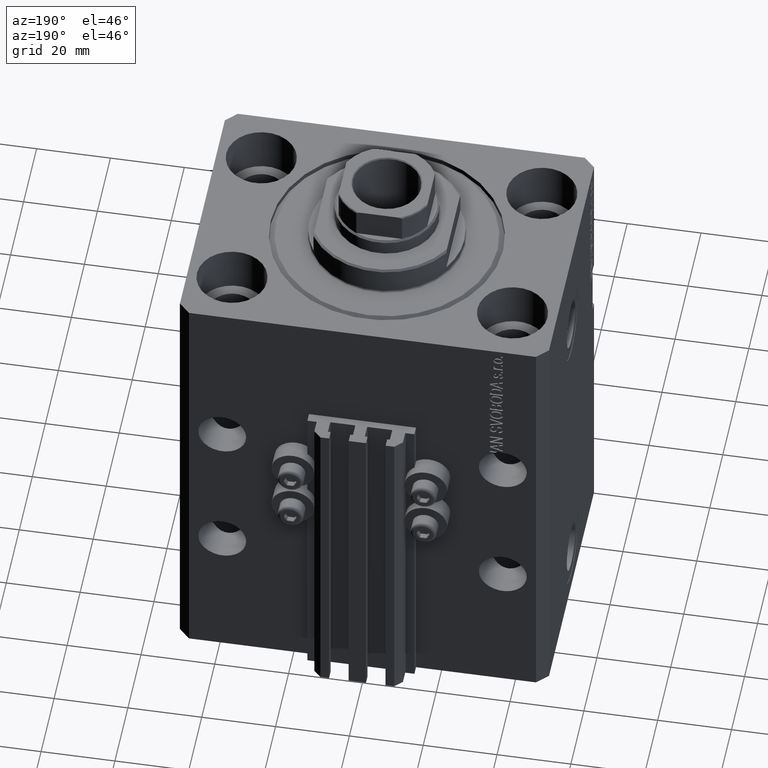
[diagram: clean part render]
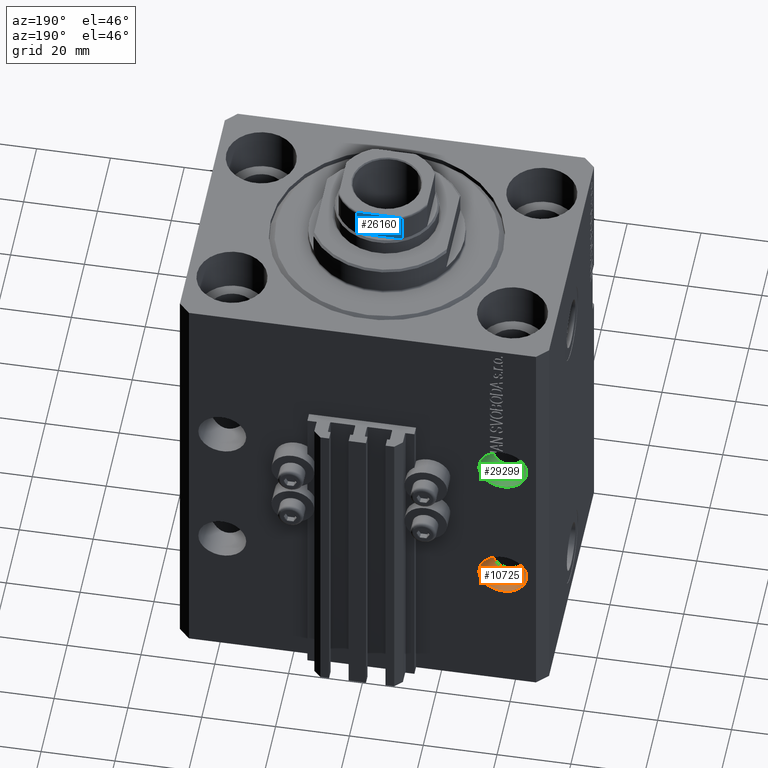
[diagram: same view with three faces highlighted in distinct colors, each labeled with its STEP entity id]
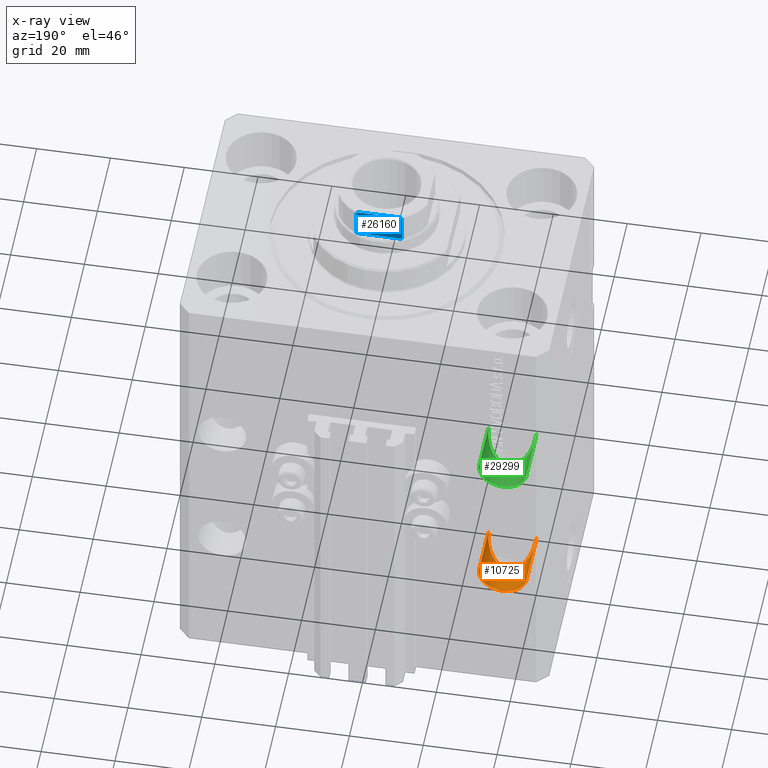
[diagram: x-ray of the same camera — body ghosted, the three highlighted faces saturated]
A machine part, auxiliary view with three faces highlighted in distinct colors.
The next image is the same camera in x-ray (body ghosted, the three faces saturated) — at least one of them is partly hidden behind the body in this view.
Their STEP definitions:

[orange] entity #10725 — the highlighted cylindrical surface (edge-blend (fillet) strip) has radius 6.5 mm, axis along (0, -1, 0).
#1417 = CARTESIAN_POINT ( 'NONE',  ( -38.00000000000003553, 45.50000000000002842, -84.99999999999998579 ) ) ;
#1588 = ORIENTED_EDGE ( 'NONE', *, *, #12314, .F. ) ;
#1900 = FACE_OUTER_BOUND ( 'NONE', #8806, .T. ) ;
#3801 = EDGE_CURVE ( 'NONE', #14684, #17312, #33950, .T. ) ;
#4779 = VECTOR ( 'NONE', #38056, 1000.000000000000000 ) ;
#5371 = CARTESIAN_POINT ( 'NONE',  ( -44.50000000000002132, 22.50000000000000000, -84.99999999999998579 ) ) ;
#5410 = VECTOR ( 'NONE', #21837, 1000.000000000000000 ) ;
#6271 = AXIS2_PLACEMENT_3D ( 'NONE', #1417, #30664, #24063 ) ;
#6962 = LINE ( 'NONE', #24754, #5410 ) ;
#8361 = CARTESIAN_POINT ( 'NONE',  ( -31.50000000000002132, 22.50000000000000000, -84.99999999999998579 ) ) ;
#8806 = EDGE_LOOP ( 'NONE', ( #23303, #41516, #46603, #1588 ) ) ;
#9042 = CARTESIAN_POINT ( 'NONE',  ( -31.50000000000002842, 45.50000000000002842, -84.99999999999998579 ) ) ;
#10725 = ADVANCED_FACE ( 'NONE', ( #1900 ), #19931, .F. ) ;
#12314 = EDGE_CURVE ( 'NONE', #32711, #14684, #27347, .T. ) ;
#13624 = CARTESIAN_POINT ( 'NONE',  ( -31.50000000000002487, 35.49999999999999289, -98.00000000000000000 ) ) ;
#14684 = VERTEX_POINT ( 'NONE', #8361 ) ;
#17312 = VERTEX_POINT ( 'NONE', #5371 ) ;
#19280 = AXIS2_PLACEMENT_3D ( 'NONE', #35631, #28818, #21029 ) ;
#19931 = CYLINDRICAL_SURFACE ( 'NONE', #6271, 6.500000000000005329 ) ;
#21029 = DIRECTION ( 'NONE',  ( -1.000000000000000000, 0.000000000000000000, 0.000000000000000000 ) ) ;
#21837 = DIRECTION ( 'NONE',  ( 1.176083712526788232E-16, -1.000000000000000000, -0.000000000000000000 ) ) ;
#22345 = VERTEX_POINT ( 'NONE', #41346 ) ;
#23303 = ORIENTED_EDGE ( 'NONE', *, *, #28693, .T. ) ;
#23890 = CARTESIAN_POINT ( 'NONE',  ( -31.50000000000002132, 22.50000000000000000, -84.99999999999998579 ) ) ;
#24063 = DIRECTION ( 'NONE',  ( 1.000000000000000000, 0.000000000000000000, 0.000000000000000000 ) ) ;
#24754 = CARTESIAN_POINT ( 'NONE',  ( -44.50000000000004263, 45.50000000000002842, -84.99999999999998579 ) ) ;
#27347 = LINE ( 'NONE', #9042, #4779 ) ;
#28256 = CARTESIAN_POINT ( 'NONE',  ( -44.50000000000002132, 22.50000000000000000, -84.99999999999998579 ) ) ;
#28693 = EDGE_CURVE ( 'NONE', #32711, #22345, #40269, .T. ) ;
#28818 = DIRECTION ( 'NONE',  ( 7.381802025433175941E-17, 1.000000000000000000, -0.000000000000000000 ) ) ;
#30664 = DIRECTION ( 'NONE',  ( 1.176083712526788232E-16, -1.000000000000000000, -0.000000000000000000 ) ) ;
#32711 = VERTEX_POINT ( 'NONE', #40956 ) ;
#33950 =( BOUNDED_CURVE ( )  B_SPLINE_CURVE ( 3, ( #23890, #13624, #46524, #28256 ),
 .UNSPECIFIED., .F., .F. ) 
 B_SPLINE_CURVE_WITH_KNOTS ( ( 4, 4 ),
 ( 1.570796326794896558, 4.712388980384689674 ),
 .UNSPECIFIED. ) 
 CURVE ( )  GEOMETRIC_REPRESENTATION_ITEM ( )  RATIONAL_B_SPLINE_CURVE ( ( 1.000000000000000000, 0.3333333333333333703, 0.3333333333333333703, 1.000000000000000000 ) ) 
 REPRESENTATION_ITEM ( '' )  );
#35631 = CARTESIAN_POINT ( 'NONE',  ( -38.00000000000003553, 37.50000000000000000, -84.99999999999998579 ) ) ;
#36367 = EDGE_CURVE ( 'NONE', #22345, #17312, #6962, .T. ) ;
#38056 = DIRECTION ( 'NONE',  ( 1.176083712526788232E-16, -1.000000000000000000, -0.000000000000000000 ) ) ;
#40269 = CIRCLE ( 'NONE', #19280, 6.500000000000005329 ) ;
#40956 = CARTESIAN_POINT ( 'NONE',  ( -31.50000000000002842, 37.50000000000000000, -84.99999999999998579 ) ) ;
#41346 = CARTESIAN_POINT ( 'NONE',  ( -44.50000000000004263, 37.50000000000000000, -84.99999999999998579 ) ) ;
#41516 = ORIENTED_EDGE ( 'NONE', *, *, #36367, .T. ) ;
#46524 = CARTESIAN_POINT ( 'NONE',  ( -44.50000000000002132, 35.49999999999999289, -98.00000000000000000 ) ) ;
#46603 = ORIENTED_EDGE ( 'NONE', *, *, #3801, .F. ) ;

[blue] entity #26160 — the highlighted planar face has unit normal (0, -1, 0).
#777 = B_SPLINE_CURVE_WITH_KNOTS ( 'NONE', 3,
 ( #16339, #23896, #1728, #34380, #45584, #5386, #41927, #24130, #38976, #27791 ),
 .UNSPECIFIED., .F., .F.,
 ( 4, 2, 2, 2, 4 ),
 ( 1.734723475976807094E-18, 0.0006877128613558363118, 0.001031569292033764768, 0.001203497507372728020, 0.001375425722711691272 ),
 .UNSPECIFIED. ) ;
#1043 = DIRECTION ( 'NONE',  ( 1.000000000000000000, 7.228014483236695816E-17, 0.000000000000000000 ) ) ;
#1270 = LINE ( 'NONE', #30988, #25839 ) ;
#1728 = CARTESIAN_POINT ( 'NONE',  ( 5.459934723612540175, 12.00000000000000000, 133.0794964115812320 ) ) ;
#2071 = AXIS2_PLACEMENT_3D ( 'NONE', #41714, #34410, #1043 ) ;
#2104 = B_SPLINE_CURVE_WITH_KNOTS ( 'NONE', 3,
 ( #8052, #32752, #40040, #40285, #47600, #6673, #21788, #15145, #11466, #26345 ),
 .UNSPECIFIED., .F., .F.,
 ( 4, 2, 2, 2, 4 ),
 ( 0.000000000000000000, 0.0001740189231935554155, 0.0003480378463871108309, 0.0006960756927741755832, 0.001392151385548328398 ),
 .UNSPECIFIED. ) ;
#2799 = EDGE_CURVE ( 'NONE', #46961, #12184, #2104, .T. ) ;
#3527 = EDGE_CURVE ( 'NONE', #38471, #42957, #35609, .T. ) ;
#4623 = CARTESIAN_POINT ( 'NONE',  ( -6.184658438426490434, 12.00000000000000000, 132.5999999999999943 ) ) ;
#4942 = ORIENTED_EDGE ( 'NONE', *, *, #3527, .F. ) ;
#5002 = CARTESIAN_POINT ( 'NONE',  ( -5.000000000000001776, 11.99999999999999822, 133.0999999999999943 ) ) ;
#5386 = CARTESIAN_POINT ( 'NONE',  ( 6.045866546018590526, 12.00000000000000178, 132.8461068616299201 ) ) ;
#6673 = CARTESIAN_POINT ( 'NONE',  ( -5.900889097622411761, 12.00000000000000000, 132.9429613869931757 ) ) ;
#6954 = VERTEX_POINT ( 'NONE', #22157 ) ;
#8052 = CARTESIAN_POINT ( 'NONE',  ( -6.184658438426490434, 12.00000000000000000, 132.5999999999999943 ) ) ;
#8565 = FACE_OUTER_BOUND ( 'NONE', #20205, .T. ) ;
#9617 = ORIENTED_EDGE ( 'NONE', *, *, #46550, .T. ) ;
#11466 = CARTESIAN_POINT ( 'NONE',  ( -5.230795946637844196, 11.99999999999999467, 133.0999999999999375 ) ) ;
#11753 = PLANE ( 'NONE',  #2071 ) ;
#12011 = ORIENTED_EDGE ( 'NONE', *, *, #44585, .T. ) ;
#12100 = CARTESIAN_POINT ( 'NONE',  ( -11.99999999999999822, 11.99999999999999822, 125.0999999999999943 ) ) ;
#12184 = VERTEX_POINT ( 'NONE', #5002 ) ;
#14482 = VERTEX_POINT ( 'NONE', #25918 ) ;
#15145 = CARTESIAN_POINT ( 'NONE',  ( -5.458892612163326774, 11.99999999999999822, 133.0796099716497451 ) ) ;
#16233 = DIRECTION ( 'NONE',  ( -1.000000000000000000, -7.228014483236695816E-17, -0.000000000000000000 ) ) ;
#16339 = CARTESIAN_POINT ( 'NONE',  ( 5.000000000000002665, 12.00000000000000000, 133.0999999999999943 ) ) ;
#18910 = CARTESIAN_POINT ( 'NONE',  ( 6.184658438426492211, 12.00000000000000178, 125.0999999999999943 ) ) ;
#19285 = ORIENTED_EDGE ( 'NONE', *, *, #2799, .T. ) ;
#20205 = EDGE_LOOP ( 'NONE', ( #38365, #23914, #4942, #12011, #9617, #19285 ) ) ;
#21788 = CARTESIAN_POINT ( 'NONE',  ( -5.792513940493511981, 11.99999999999999822, 132.9846382036009516 ) ) ;
#22157 = CARTESIAN_POINT ( 'NONE',  ( -6.184658438426490434, 12.00000000000000000, 125.0999999999999943 ) ) ;
#23556 = VECTOR ( 'NONE', #39757, 1000.000000000000000 ) ;
#23896 = CARTESIAN_POINT ( 'NONE',  ( 5.230809753656822991, 12.00000000000000000, 133.1000000000000512 ) ) ;
#23914 = ORIENTED_EDGE ( 'NONE', *, *, #24449, .T. ) ;
#24130 = CARTESIAN_POINT ( 'NONE',  ( 6.160856115322536297, 11.99999999999999645, 132.7149782197478771 ) ) ;
#24449 = EDGE_CURVE ( 'NONE', #14482, #42957, #777, .T. ) ;
#25839 = VECTOR ( 'NONE', #45839, 1000.000000000000000 ) ;
#25918 = CARTESIAN_POINT ( 'NONE',  ( 5.000000000000002665, 12.00000000000000000, 133.0999999999999943 ) ) ;
#26160 = ADVANCED_FACE ( 'NONE', ( #8565 ), #11753, .F. ) ;
#26345 = CARTESIAN_POINT ( 'NONE',  ( -5.000000000000001776, 11.99999999999999822, 133.0999999999999943 ) ) ;
#27791 = CARTESIAN_POINT ( 'NONE',  ( 6.184658438426490434, 11.99999999999999822, 132.5999999999999943 ) ) ;
#28079 = DIRECTION ( 'NONE',  ( -0.000000000000000000, -0.000000000000000000, 1.000000000000000000 ) ) ;
#30988 = CARTESIAN_POINT ( 'NONE',  ( -11.99999999999999822, 11.99999999999999822, 133.0999999999999943 ) ) ;
#31731 = CARTESIAN_POINT ( 'NONE',  ( 6.184658438426490434, 11.99999999999999822, -0.001000000000001000089 ) ) ;
#32752 = CARTESIAN_POINT ( 'NONE',  ( -6.184658438426488658, 12.00000000000000000, 132.6589344020394208 ) ) ;
#33793 = LINE ( 'NONE', #12100, #44477 ) ;
#34133 = CARTESIAN_POINT ( 'NONE',  ( 6.184658438426490434, 11.99999999999999822, 132.5999999999999943 ) ) ;
#34380 = CARTESIAN_POINT ( 'NONE',  ( 5.793822051191360067, 12.00000000000000355, 132.9841735219943644 ) ) ;
#34410 = DIRECTION ( 'NONE',  ( 7.228014483236695816E-17, -1.000000000000000000, 0.000000000000000000 ) ) ;
#35609 = LINE ( 'NONE', #31731, #48166 ) ;
#38365 = ORIENTED_EDGE ( 'NONE', *, *, #45182, .F. ) ;
#38471 = VERTEX_POINT ( 'NONE', #18910 ) ;
#38976 = CARTESIAN_POINT ( 'NONE',  ( 6.184658438426492211, 11.99999999999999467, 132.6589821493406873 ) ) ;
#39757 = DIRECTION ( 'NONE',  ( -0.000000000000000000, -0.000000000000000000, 1.000000000000000000 ) ) ;
#40040 = CARTESIAN_POINT ( 'NONE',  ( -6.161088279078727581, 11.99999999999999822, 132.7146234191509677 ) ) ;
#40285 = CARTESIAN_POINT ( 'NONE',  ( -6.091003570118824761, 11.99999999999999822, 132.8080862465980942 ) ) ;
#41714 = CARTESIAN_POINT ( 'NONE',  ( -11.99999999999999822, 11.99999999999999822, 133.0999999999999943 ) ) ;
#41927 = CARTESIAN_POINT ( 'NONE',  ( 6.091027642353958882, 12.00000000000000178, 132.8080088155617204 ) ) ;
#42957 = VERTEX_POINT ( 'NONE', #34133 ) ;
#43179 = LINE ( 'NONE', #47560, #23556 ) ;
#44477 = VECTOR ( 'NONE', #16233, 1000.000000000000000 ) ;
#44585 = EDGE_CURVE ( 'NONE', #38471, #6954, #33793, .T. ) ;
#45182 = EDGE_CURVE ( 'NONE', #14482, #12184, #1270, .T. ) ;
#45584 = CARTESIAN_POINT ( 'NONE',  ( 5.903192932991098374, 12.00000000000000355, 132.9415152347680760 ) ) ;
#45839 = DIRECTION ( 'NONE',  ( -1.000000000000000000, -7.228014483236695816E-17, -0.000000000000000000 ) ) ;
#46550 = EDGE_CURVE ( 'NONE', #6954, #46961, #43179, .T. ) ;
#46961 = VERTEX_POINT ( 'NONE', #4623 ) ;
#47560 = CARTESIAN_POINT ( 'NONE',  ( -6.184658438426490434, 12.00000000000000000, -0.001000000000001000089 ) ) ;
#47600 = CARTESIAN_POINT ( 'NONE',  ( -6.046414714222235531, 12.00000000000000000, 132.8457872300293161 ) ) ;
#48166 = VECTOR ( 'NONE', #28079, 1000.000000000000000 ) ;

[green] entity #29299 — the highlighted cylindrical surface (edge-blend (fillet) strip) has radius 6.5 mm, axis along (0, -1, 0).
#371 = CARTESIAN_POINT ( 'NONE',  ( -37.99999999999999289, 60.50000000000002132, -45.00000000000000711 ) ) ;
#498 = LINE ( 'NONE', #33150, #46011 ) ;
#1461 = CARTESIAN_POINT ( 'NONE',  ( -37.99999999999999289, 37.50000000000000000, -45.00000000000000711 ) ) ;
#2218 =( BOUNDED_CURVE ( )  B_SPLINE_CURVE ( 3, ( #9954, #39681, #44074, #7036 ),
 .UNSPECIFIED., .F., .T. ) 
 B_SPLINE_CURVE_WITH_KNOTS ( ( 4, 4 ),
 ( 1.570796326794896558, 4.712388980384689674 ),
 .UNSPECIFIED. ) 
 CURVE ( )  GEOMETRIC_REPRESENTATION_ITEM ( )  RATIONAL_B_SPLINE_CURVE ( ( 1.000000000000000000, 0.3333333333333333703, 0.3333333333333333703, 1.000000000000000000 ) ) 
 REPRESENTATION_ITEM ( '' )  );
#2446 = EDGE_LOOP ( 'NONE', ( #45121, #22282, #8356, #27868 ) ) ;
#2713 = CARTESIAN_POINT ( 'NONE',  ( -44.49999999999999289, 37.50000000000000000, -45.00000000000000711 ) ) ;
#5310 = EDGE_CURVE ( 'NONE', #12464, #25414, #20612, .T. ) ;
#5912 = VERTEX_POINT ( 'NONE', #18994 ) ;
#7036 = CARTESIAN_POINT ( 'NONE',  ( -44.49999999999999289, 22.50000000000000000, -45.00000000000001421 ) ) ;
#8356 = ORIENTED_EDGE ( 'NONE', *, *, #18129, .F. ) ;
#8377 = DIRECTION ( 'NONE',  ( 1.000000000000000000, 0.000000000000000000, 0.000000000000000000 ) ) ;
#9954 = CARTESIAN_POINT ( 'NONE',  ( -31.49999999999999289, 22.50000000000000000, -45.00000000000001421 ) ) ;
#12464 = VERTEX_POINT ( 'NONE', #2713 ) ;
#13521 = CARTESIAN_POINT ( 'NONE',  ( -44.49999999999999289, 60.50000000000002132, -45.00000000000000711 ) ) ;
#15359 = DIRECTION ( 'NONE',  ( 1.101411730780568590E-16, -1.000000000000000000, -0.000000000000000000 ) ) ;
#15397 = CARTESIAN_POINT ( 'NONE',  ( -44.49999999999999289, 22.50000000000000000, -45.00000000000001421 ) ) ;
#16318 = DIRECTION ( 'NONE',  ( 7.381802025433175941E-17, 1.000000000000000000, -0.000000000000000000 ) ) ;
#16791 = DIRECTION ( 'NONE',  ( -1.000000000000000000, 0.000000000000000000, 0.000000000000000000 ) ) ;
#17095 = CARTESIAN_POINT ( 'NONE',  ( -31.49999999999999289, 37.50000000000000000, -45.00000000000000711 ) ) ;
#17174 = DIRECTION ( 'NONE',  ( 1.101411730780568590E-16, -1.000000000000000000, -0.000000000000000000 ) ) ;
#18129 = EDGE_CURVE ( 'NONE', #5912, #25414, #2218, .T. ) ;
#18994 = CARTESIAN_POINT ( 'NONE',  ( -31.49999999999999289, 22.50000000000000000, -45.00000000000001421 ) ) ;
#20612 = LINE ( 'NONE', #13521, #30363 ) ;
#22282 = ORIENTED_EDGE ( 'NONE', *, *, #5310, .T. ) ;
#25414 = VERTEX_POINT ( 'NONE', #15397 ) ;
#26430 = CYLINDRICAL_SURFACE ( 'NONE', #27876, 6.499999999999999112 ) ;
#27868 = ORIENTED_EDGE ( 'NONE', *, *, #39729, .F. ) ;
#27876 = AXIS2_PLACEMENT_3D ( 'NONE', #371, #30328, #8377 ) ;
#29299 = ADVANCED_FACE ( 'NONE', ( #37148 ), #26430, .F. ) ;
#30328 = DIRECTION ( 'NONE',  ( 1.101411730780568590E-16, -1.000000000000000000, -0.000000000000000000 ) ) ;
#30363 = VECTOR ( 'NONE', #17174, 1000.000000000000000 ) ;
#31109 = AXIS2_PLACEMENT_3D ( 'NONE', #1461, #16318, #16791 ) ;
#33150 = CARTESIAN_POINT ( 'NONE',  ( -31.49999999999999289, 60.50000000000002132, -45.00000000000000711 ) ) ;
#36003 = EDGE_CURVE ( 'NONE', #41211, #12464, #38081, .T. ) ;
#37148 = FACE_OUTER_BOUND ( 'NONE', #2446, .T. ) ;
#38081 = CIRCLE ( 'NONE', #31109, 6.499999999999999112 ) ;
#39681 = CARTESIAN_POINT ( 'NONE',  ( -31.49999999999999289, 35.49999999999999289, -58.00000000000001421 ) ) ;
#39729 = EDGE_CURVE ( 'NONE', #41211, #5912, #498, .T. ) ;
#41211 = VERTEX_POINT ( 'NONE', #17095 ) ;
#44074 = CARTESIAN_POINT ( 'NONE',  ( -44.49999999999999289, 35.49999999999999289, -58.00000000000001421 ) ) ;
#45121 = ORIENTED_EDGE ( 'NONE', *, *, #36003, .T. ) ;
#46011 = VECTOR ( 'NONE', #15359, 1000.000000000000000 ) ;